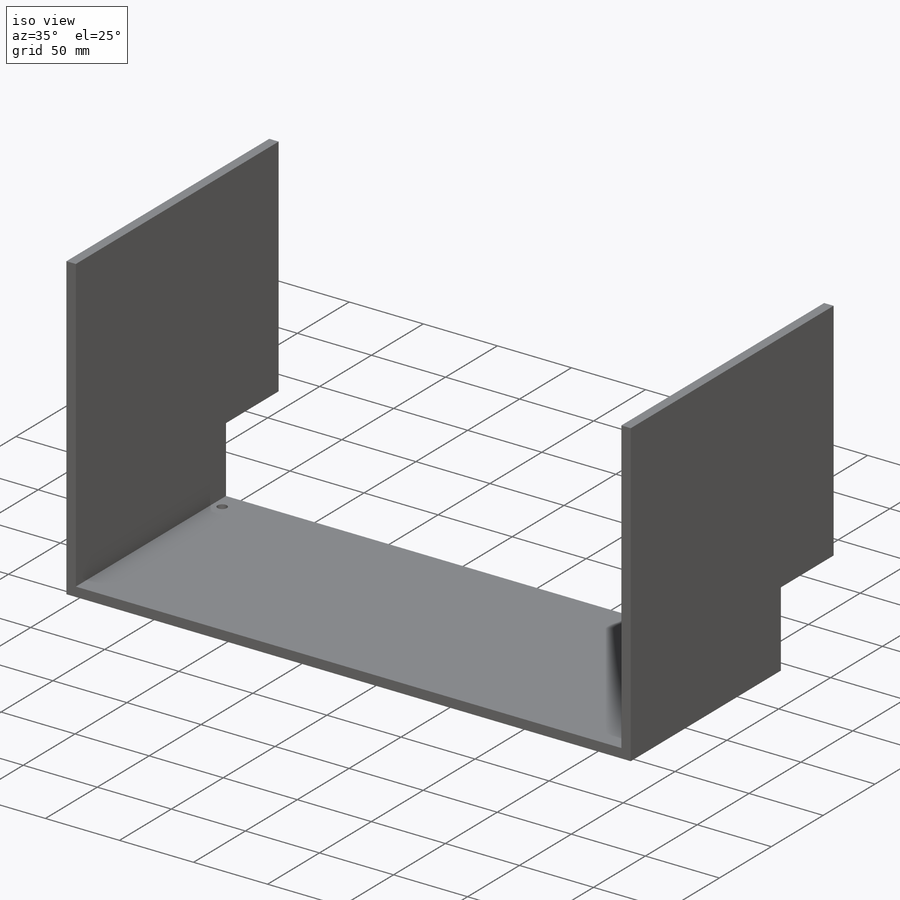
[diagram: iso view]
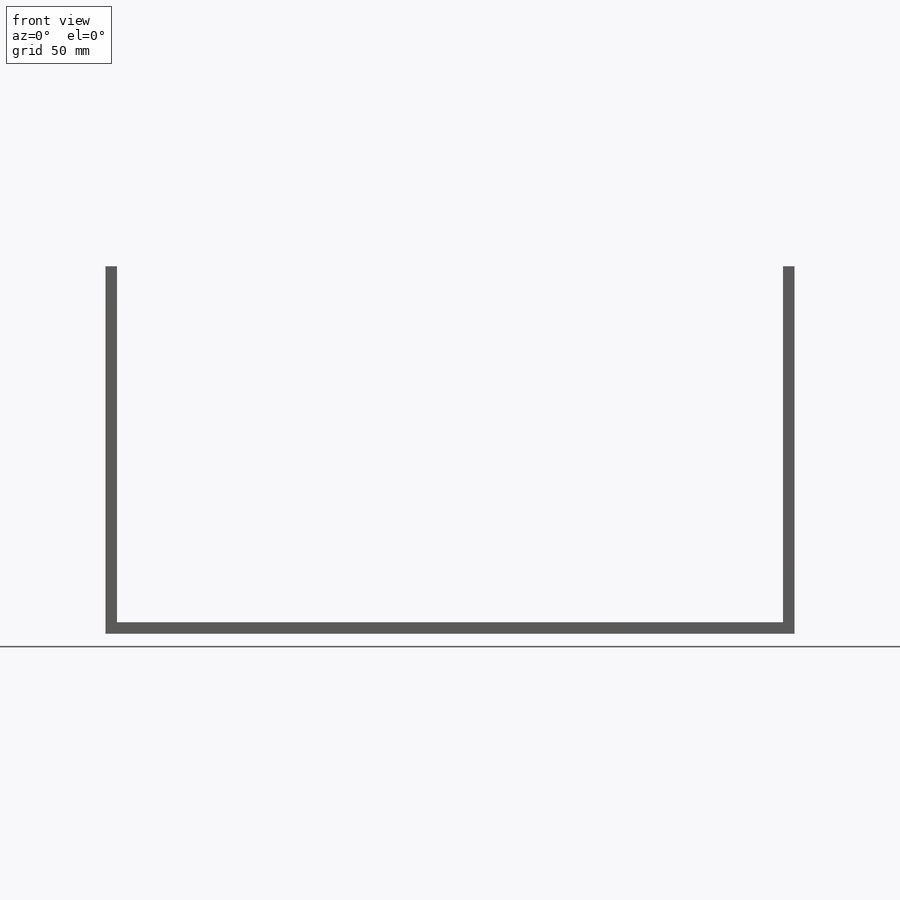
[diagram: front view]
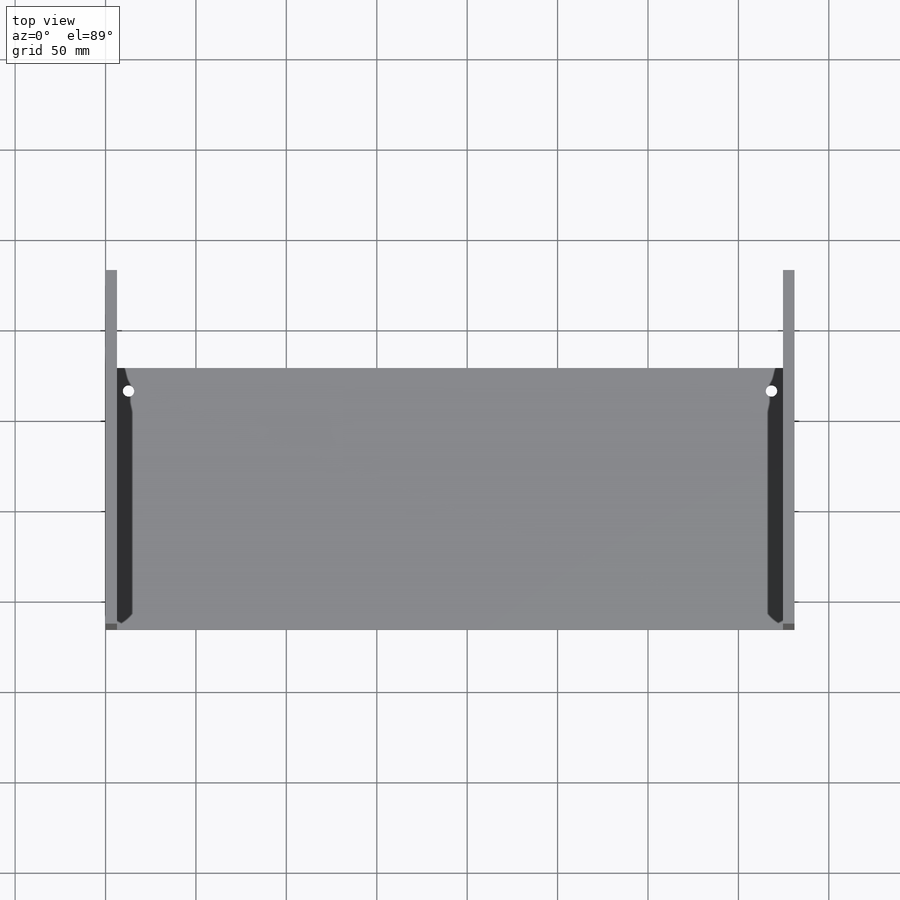
[diagram: top view]
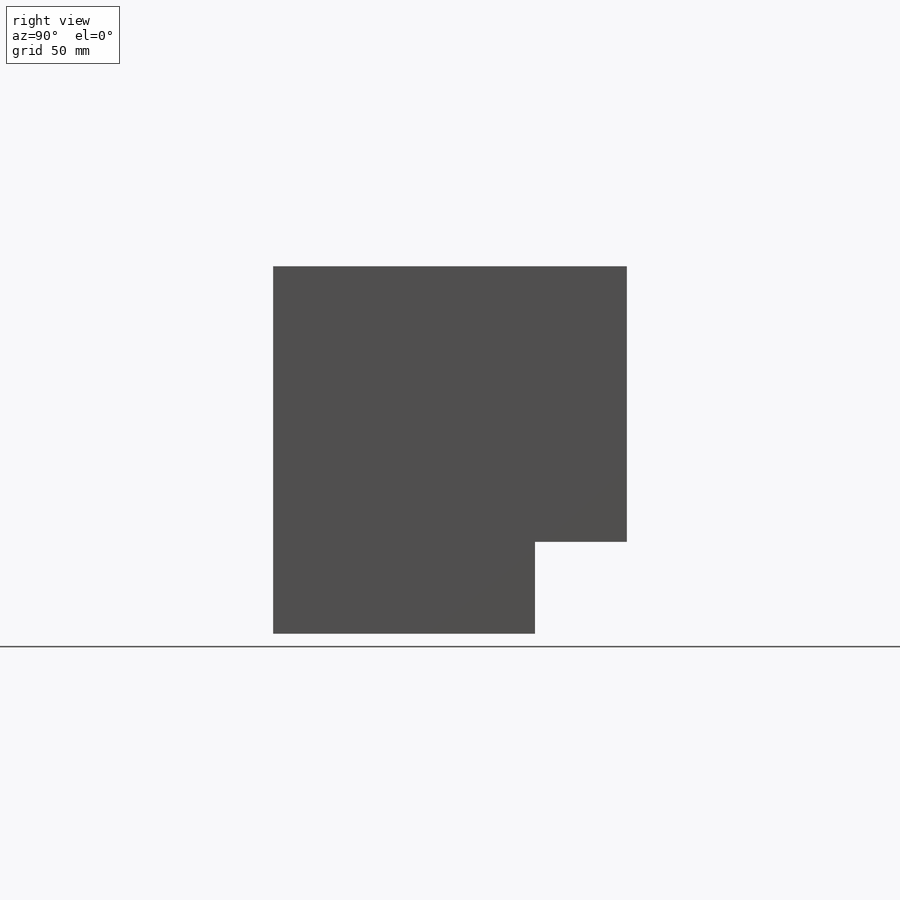
[diagram: right view]
SOLIDWORKS PART (.sldprt)
format: sldprt  version: not decoded by parser v0  size: 461,312 bytes
history: native  units: mm
features: sketch x24, extrude x13, cut_extrude x11, material x1 (+13 scaffold rows collapsed)
feature tree (62):
  scaffold x13  (default folders/planes/origin — collapsed)
  material  "Material <not specified>"
  sketch  "Sketch1"  dims[D1=429.26mm D2=381.0mm]
  extrude  "Boss-Extrude1"  Depth=6.35mm
  sketch  "Sketch2"  dims[D1=254.0mm D2=203.2mm D3=0.0mm D4=63.5mm]
  cut_extrude  "Cut-Extrude1"  Depth=6.35mm
  sketch  "Sketch3"  dims[D1=73.66mm D2=381.0mm]
  cut_extrude  "Cut-Extrude2"  Depth=6.35mm
  sketch  "Sketch4"  dims[D1=254.0mm D2=0.0mm D3=0.0mm]
  cut_extrude  "Cut-Extrude3"  Depth=73.66mm
  sketch  "Sketch6"  dims[D1=6.35mm D2=195.58mm]
  extrude  "Boss-Extrude2"  Depth=171.45mm
  sketch  "Sketch7"  dims[D1=195.58mm D2=6.35mm]
  extrude  "Boss-Extrude3"  Depth=158.75mm
  sketch  "Sketch8"
  extrude  "Boss-Extrude4"  Depth=50.8mm
  sketch  "Sketch9"
  cut_extrude  "Cut-Extrude4"  Depth=50.8mm
  sketch  "Sketch10"
  extrude  "Boss-Extrude5"  Depth=50.8mm
  sketch  "Sketch11"
  cut_extrude  "Cut-Extrude5"  Depth=50.8mm
  sketch  "Sketch13"
  cut_extrude  "Cut-Extrude6"  Depth=50.8mm
  sketch  "Sketch14"
  cut_extrude  "Cut-Extrude7"  Depth=50.8mm
  sketch  "Sketch15"
  cut_extrude  "Cut-Extrude8"  Depth=50.8mm
  sketch  "Sketch16"
  extrude  "Boss-Extrude6"  Depth=25.4mm
  sketch  "Sketch17"
  extrude  "Boss-Extrude7"  Depth=19.05mm
  sketch  "Sketch19"  dims[D1=139.7mm D2=6.35mm]
  extrude  "Boss-Extrude8"  Depth=50.8mm
  sketch  "Sketch20"
  extrude  "Boss-Extrude9"  Depth=31.75mm
  sketch  "Sketch21"  dims[D1=139.7mm]
  extrude  "Boss-Extrude10"  Depth=50.8mm
  sketch  "Sketch22"
  extrude  "Boss-Extrude11"  Depth=50.8mm
  sketch  "Sketch23"
  extrude  "Boss-Extrude12"  Depth=12.7mm
  sketch  "Sketch24"
  extrude  "Boss-Extrude13"  Depth=12.7mm
  sketch  "Sketch26"
  cut_extrude  "Cut-Extrude9"  Depth=12.7mm
  sketch  "Sketch27"  dims[c1.D1=6.35mm c1.D2=6.35mm c1.D3=6.35mm c2.D2=12.7mm c2.D3=6.35mm]
  cut_extrude  "Cut-Extrude10"  Depth=635mm
  sketch  "Sketch28"  dims[c1.D1=6.35mm c1.D2=6.35mm c1.D3=6.35mm c2.D2=12.7mm c2.D3=6.35mm]
  cut_extrude  "Cut-Extrude11"  Depth=635mm
decode coverage: 34 of 48 modeling features carry decoded parameters
note: suppression state not decoded; provenance and decode notes live in map.json
